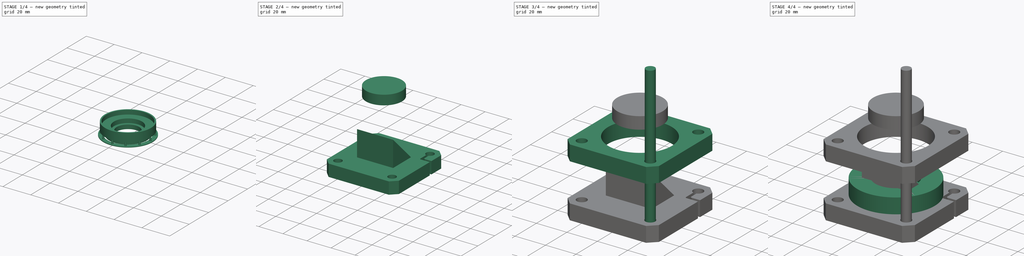
[diagram: build sequence overview — one tinted view per stage of 4, left to right]
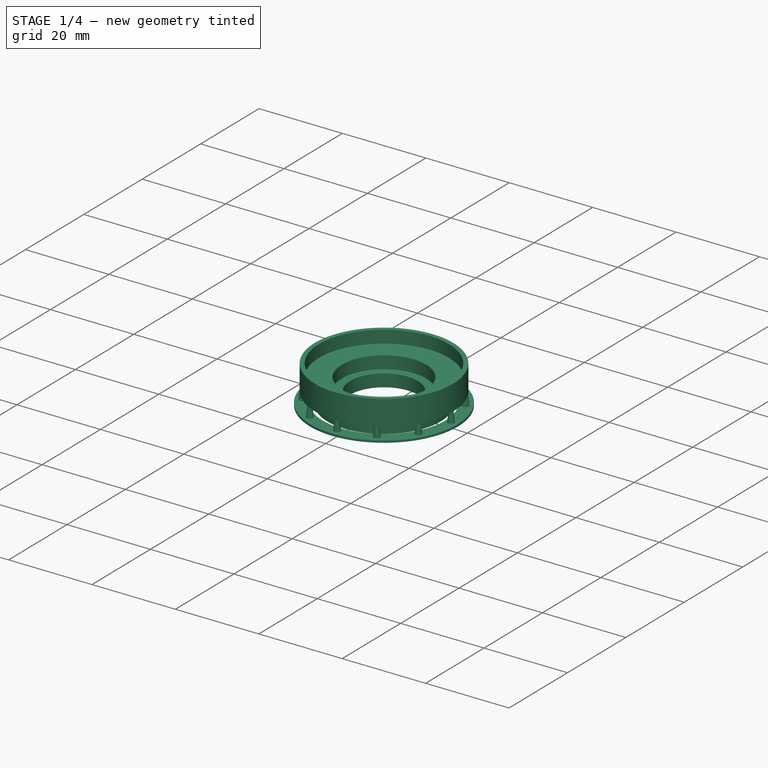
[diagram: stage 1 of 4 — iso view after this stage's code; geometry added in this stage tinted green]
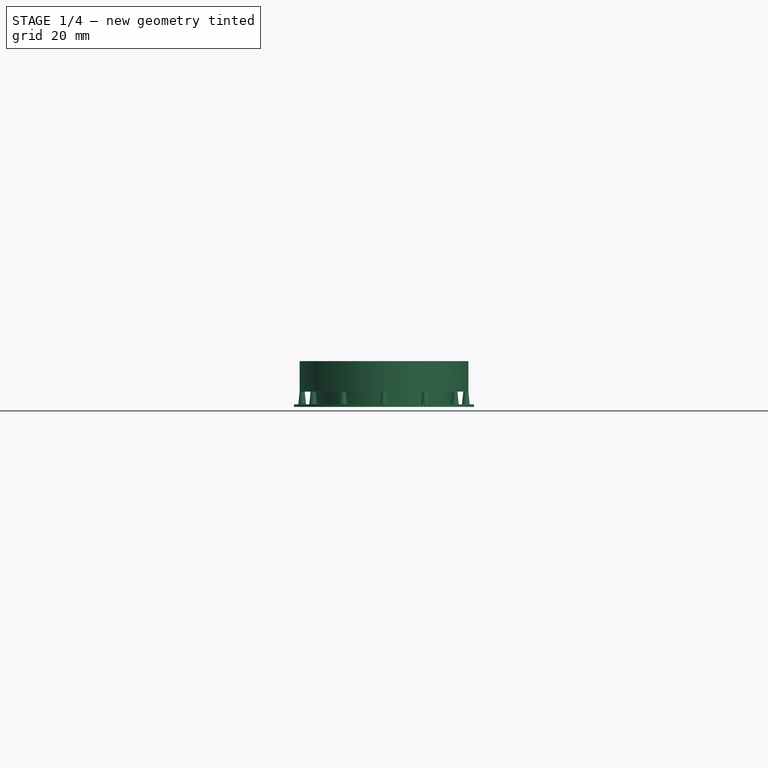
[diagram: stage 1 of 4 — front view after this stage's code; geometry added in this stage tinted green]
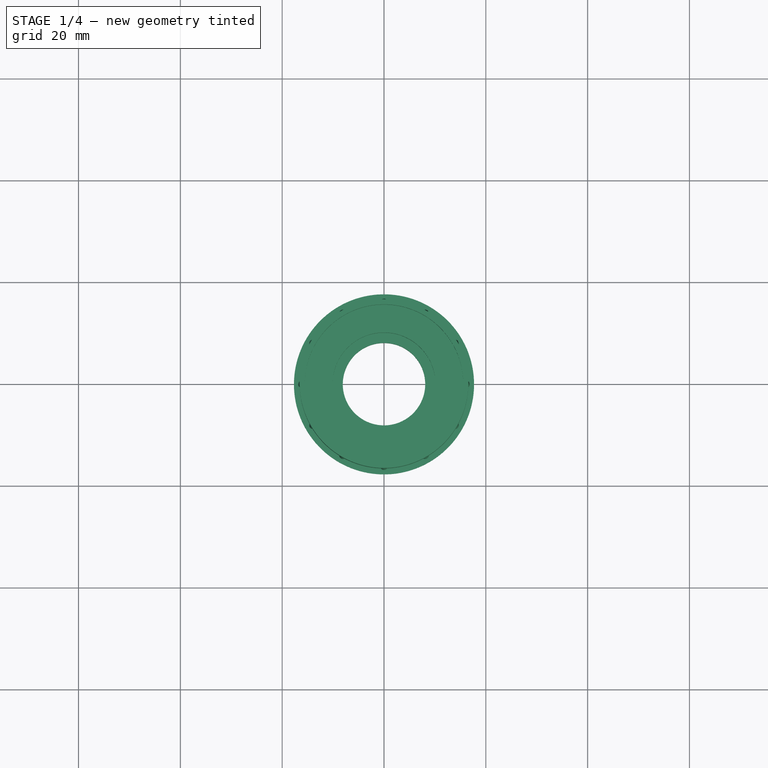
[diagram: stage 1 of 4 — top view after this stage's code; geometry added in this stage tinted green]
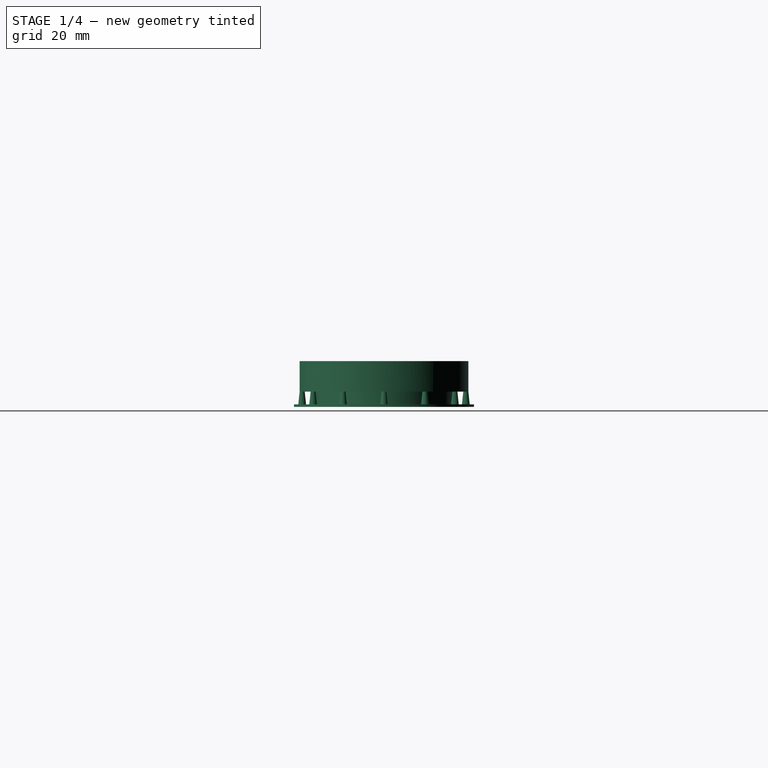
[diagram: stage 1 of 4 — right view after this stage's code; geometry added in this stage tinted green]
FCSTD DOCUMENT  (FreeCAD 0.20R29410 (Git))
Label: AudioExciter
License: All rights reserved
LicenseURL: http://en.wikipedia.org/wiki/All_rights_reserved
objects: Sketcher::SketchObject×10, PartDesign::Body×10, PartDesign::Pad×6, PartDesign::FeatureBase×4, PartDesign::Revolution×3, Part::Part2DObjectPython×3, Spreadsheet::Sheet×1, PartDesign::Plane×1
note: 46 computed .brp shape members not serialized (recipe doc carries the construction recipe); baked Part::Feature solids carry a one-line shape summary decoded from their .brp

FEATURE [PartDesign::Body] Body008  label="WaterdishBody"
  Group = -> [Sketch006,Revolution001]
  Origin = -> Origin008
  Tip = -> Revolution001
FEATURE [Sketcher::SketchObject] Sketch007
  FullyConstrained = true
  MapMode = 5
  Placement = pos=(0,0,0) rot=(0.57735,0.57735,0.57735;2.0944rad)
  Support = -> [YZ_Plane009]
  expr: Constraints[16] = 10mm + 0.1mm
  expr: Constraints[17] = 13.67mm - 0.1mm
  sketch-geometry (11):
    g0: LineSegment StartX=13.57 StartY=0 StartZ=0 EndX=13.57 EndY=3 EndZ=0
    g1: LineSegment StartX=13.57 StartY=3 StartZ=0 EndX=16.57 EndY=3 EndZ=0
    g2: LineSegment StartX=16.57 StartY=3 StartZ=0 EndX=16.57 EndY=6 EndZ=0
    g3: LineSegment StartX=15.57 StartY=6 StartZ=0 EndX=10.1 EndY=6 EndZ=0
    g4: LineSegment StartX=8.1 StartY=3 StartZ=0 EndX=8.1 EndY=0 EndZ=0
    g5: LineSegment StartX=8.1 StartY=0 StartZ=0 EndX=13.57 EndY=0 EndZ=0
    g6: LineSegment StartX=10.1 StartY=6 StartZ=0 EndX=10.1 EndY=3 EndZ=0
    g7: LineSegment StartX=10.1 StartY=3 StartZ=0 EndX=8.1 EndY=3 EndZ=0
    g8: LineSegment StartX=16.57 StartY=6 StartZ=0 EndX=16.57 EndY=9 EndZ=0
    g9: LineSegment StartX=16.57 StartY=9 StartZ=0 EndX=15.57 EndY=9 EndZ=0
    g10: LineSegment StartX=15.57 StartY=9 StartZ=0 EndX=15.57 EndY=6 EndZ=0
  constraints (33):
    c: PointOnObject(g0,g-1)
    c: Vertical(g0)
    c: Coincident(g0,g1)
    c: Horizontal(g1)
    c: Coincident(g1,g2)
    c: Vertical(g2)
    c: Horizontal(g3)
    c: PointOnObject(g4,g-1)
    c: Vertical(g4)
    c: Coincident(g4,g5)
    c: Coincident(g5,g0)
    c: Vertical(g6)
    c: Coincident(g6,g7)
    c: Horizontal(g7)
    c: Coincident(g3,g6)
    c: Coincident(g4,g7)
    c: DistanceX(g-1,g3) = 10.1
    c: DistanceX(g-1,g0) = 13.57
    c: DistanceX(g7,g7) = 2
    c: DistanceY(g4,g4) = 3
    c: DistanceY(g2,g2) = 3
    c: DistanceY(g6,g6) = 3
    c: DistanceX(g1,g1) = 3
    c: Coincident(g2,g8)
    c: Vertical(g8)
    c: Coincident(g8,g9)
    c: Horizontal(g9)
    c: Coincident(g9,g10)
    c: Vertical(g10)
    c: DistanceY(g10,g10) = 3
    c: DistanceX(g9,g9) = 1
    c: Coincident(g3,g10)
    c: Equal(g0,g4)
FEATURE [PartDesign::Revolution] Revolution002
  Angle = 360
  Axis = (-2e-16,3e-16,1)
  Base = (0,0,0)
  Placement = pos=(0,0,0) rot=(0.57735,0.57735,0.57735;2.0944rad)
  Profile = -> Sketch007
  ReferenceAxis = -> Sketch007 [V_Axis]
  Refine = true
  Reversed = true
FEATURE [Sketcher::SketchObject] Sketch008
  AttachmentOffset = pos=(0,0,3) rot=(0,0,1;0rad)
  FullyConstrained = true
  MapMode = 5
  Placement = pos=(0,0,3) rot=(0,0,1;0rad)
  Support = -> [XY_Plane009]
  sketch-geometry (25):
    g0: LineSegment StartX=13.9179 StartY=-8.0355 StartZ=0 EndX=16.071 EndY=0 EndZ=0
    g1: LineSegment StartX=16.071 StartY=4e-16 StartZ=0 EndX=13.9179 EndY=8.0355 EndZ=0
    g2: LineSegment StartX=13.9179 StartY=8.0355 StartZ=0 EndX=8.0355 EndY=13.9179 EndZ=0
    g3: LineSegment StartX=8.0355 StartY=13.9179 StartZ=0 EndX=0 EndY=16.071 EndZ=0
    g4: LineSegment StartX=0 StartY=16.071 StartZ=0 EndX=-8.0355 EndY=13.9179 EndZ=0
    g5: LineSegment StartX=-8.0355 StartY=13.9179 StartZ=0 EndX=-13.9179 EndY=8.0355 EndZ=0
    g6: LineSegment StartX=-13.9179 StartY=8.0355 StartZ=0 EndX=-16.071 EndY=0 EndZ=0
    g7: LineSegment StartX=-16.071 StartY=0 StartZ=0 EndX=-13.9179 EndY=-8.0355 EndZ=0
    g8: LineSegment StartX=-13.9179 StartY=-8.0355 StartZ=0 EndX=-8.0355 EndY=-13.9179 EndZ=0
    g9: LineSegment StartX=-8.0355 StartY=-13.9179 StartZ=0 EndX=0 EndY=-16.071 EndZ=0
    g10: LineSegment StartX=0 StartY=-16.071 StartZ=0 EndX=8.0355 EndY=-13.9179 EndZ=0
    g11: LineSegment StartX=8.0355 StartY=-13.9179 StartZ=0 EndX=13.9179 EndY=-8.0355 EndZ=0
    g12: Circle CenterX=0 CenterY=0 CenterZ=0 NormalX=0 NormalY=0 NormalZ=1 AngleXU=0 Radius=16.071
    g13: Circle CenterX=13.9179 CenterY=8.0355 CenterZ=0 NormalX=0 NormalY=0 NormalZ=1 AngleXU=0 Radius=0.5
    g14: Circle CenterX=16.071 CenterY=4e-16 CenterZ=0 NormalX=0 NormalY=0 NormalZ=1 AngleXU=0 Radius=0.5
    g15: Circle CenterX=13.9179 CenterY=-8.0355 CenterZ=0 NormalX=0 NormalY=0 NormalZ=1 AngleXU=0 Radius=0.5
    g16: Circle CenterX=8.0355 CenterY=-13.9179 CenterZ=0 NormalX=0 NormalY=0 NormalZ=1 AngleXU=0 Radius=0.5
    g17: Circle CenterX=0 CenterY=-16.071 CenterZ=0 NormalX=0 NormalY=0 NormalZ=1 AngleXU=0 Radius=0.5
    g18: Circle CenterX=-8.0355 CenterY=-13.9179 CenterZ=0 NormalX=0 NormalY=0 NormalZ=1 AngleXU=0 Radius=0.5
    g19: Circle CenterX=-13.9179 CenterY=-8.0355 CenterZ=0 NormalX=0 NormalY=0 NormalZ=1 AngleXU=0 Radius=0.5
    g20: Circle CenterX=-16.071 CenterY=0 CenterZ=0 NormalX=0 NormalY=0 NormalZ=1 AngleXU=0 Radius=0.5
    g21: Circle CenterX=-13.9179 CenterY=8.0355 CenterZ=0 NormalX=0 NormalY=0 NormalZ=1 AngleXU=0 Radius=0.5
    g22: Circle CenterX=-8.0355 CenterY=13.9179 CenterZ=0 NormalX=0 NormalY=0 NormalZ=1 AngleXU=0 Radius=0.5
    g23: Circle CenterX=0 CenterY=16.071 CenterZ=0 NormalX=0 NormalY=0 NormalZ=1 AngleXU=0 Radius=0.5
    g24: Circle CenterX=8.0355 CenterY=13.9179 CenterZ=0 NormalX=0 NormalY=0 NormalZ=1 AngleXU=0 Radius=0.5
  constraints (52):
    c: Coincident(g0,g1)
    c: Coincident(g1,g2)
    c: Coincident(g2,g3)
    c: Coincident(g3,g4)
    c: Coincident(g4,g5)
    c: Coincident(g5,g6)
    c: Coincident(g6,g7)
    c: Coincident(g7,g8)
    c: Coincident(g8,g9)
    c: Coincident(g9,g10)
    c: Coincident(g10,g11)
    c: Coincident(g11,g0)
    c: Equal(g0, g1-g11) x11
    c: PointOnObject(g0,g12)
    c: PointOnObject(g1,g12)
    c: PointOnObject(g2,g12)
    c: PointOnObject(g3,g12)
    c: PointOnObject(g4,g12)
    c: PointOnObject(g5,g12)
    c: PointOnObject(g6,g12)
    c: PointOnObject(g7,g12)
    c: PointOnObject(g8,g12)
    c: PointOnObject(g9,g12)
    c: PointOnObject(g10,g12)
    c: PointOnObject(g11,g12)
    c: Coincident(g12,g-1)
    c: Coincident(g13,g1)
    c: Coincident(g14,g0)
    c: Coincident(g15,g0)
    c: Coincident(g16,g10)
    c: Coincident(g17,g9)
    c: Coincident(g18,g8)
    c: Coincident(g19,g7)
    c: Coincident(g20,g6)
    c: Coincident(g21,g5)
    c: Coincident(g22,g4)
    c: Coincident(g23,g3)
    c: Coincident(g24,g2)
    c: Equal(g24,g13)
    c: Equal(g13,g14)
    c: Equal(g14,g15)
    c: Equal(g15,g16)
    c: Equal(g16,g17)
    c: Equal(g17,g18)
    c: Equal(g18,g19)
    c: Equal(g19,g20)
    c: Equal(g20,g21)
    c: Equal(g21,g22)
    c: Equal(g22,g23)
    c: Diameter(g15) = 1
    c: Diameter(g12) = 32.142
    c: PointOnObject(g23,g-2)
FEATURE [PartDesign::Pad] Pad004
  BaseFeature = -> Revolution002
  Direction = (0,0,1)
  Length = 3
  Length2 = 10
  Placement = pos=(0,0,0) rot=(0.57735,0.57735,0.57735;2.0944rad)
  Profile = -> Sketch008
  ReferenceAxis = -> Sketch008 [N_Axis]
  Refine = true
  Reversed = true
  TaperAngle = 6
  Type = 0
FEATURE [Sketcher::SketchObject] Sketch009
  FullyConstrained = false
  MapMode = 5
  Support = -> [XY_Plane009]
  sketch-geometry (2):
    g0: Circle CenterX=0 CenterY=0 CenterZ=0 NormalX=0 NormalY=0 NormalZ=1 AngleXU=0 Radius=17.6896
    g1: Circle CenterX=0 CenterY=0 CenterZ=0 NormalX=0 NormalY=0 NormalZ=1 AngleXU=0 Radius=14.6725
  constraints (2):
    c: Coincident(g0,g-1)
    c: Coincident(g1,g0)
FEATURE [PartDesign::Pad] Pad005
  BaseFeature = -> Pad004
  Direction = (0,0,1)
  Length = 0.5
  Length2 = 10
  Placement = pos=(0,0,0) rot=(0.57735,0.57735,0.57735;2.0944rad)
  Profile = -> Sketch009
  ReferenceAxis = -> Sketch009 [N_Axis]
  Refine = true
  Type = 0
FEATURE [PartDesign::Body] Body009  label="DishFlangeBody"
  Group = -> [Sketch007,Revolution002,Sketch008,Pad004,Sketch009,Pad005]
  Origin = -> Origin009
  Placement = pos=(0,0,52.9) rot=(0,0,1;0rad)
  Tip = -> Pad005
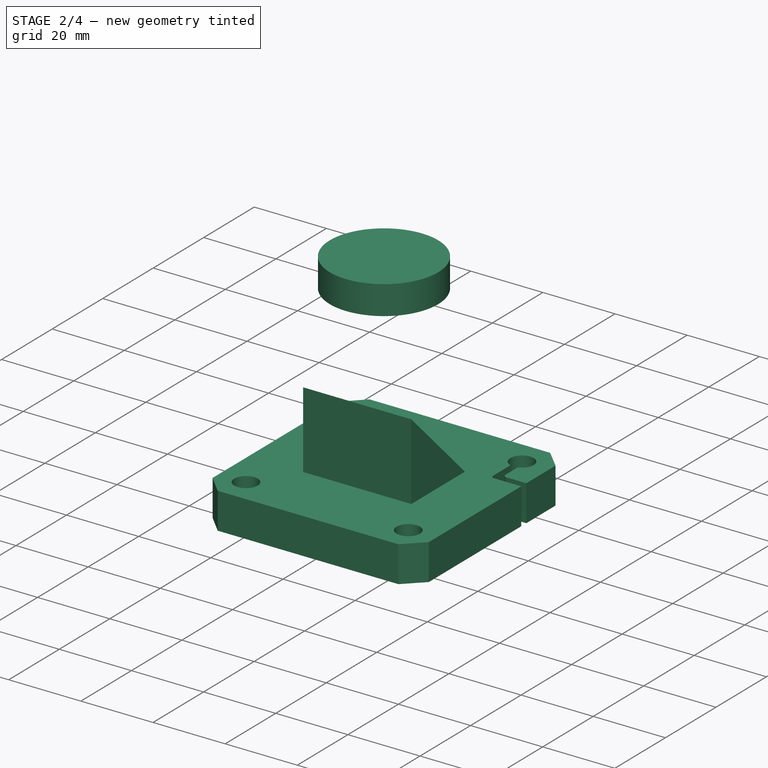
[diagram: stage 2 of 4 — iso view after this stage's code; geometry added in this stage tinted green]
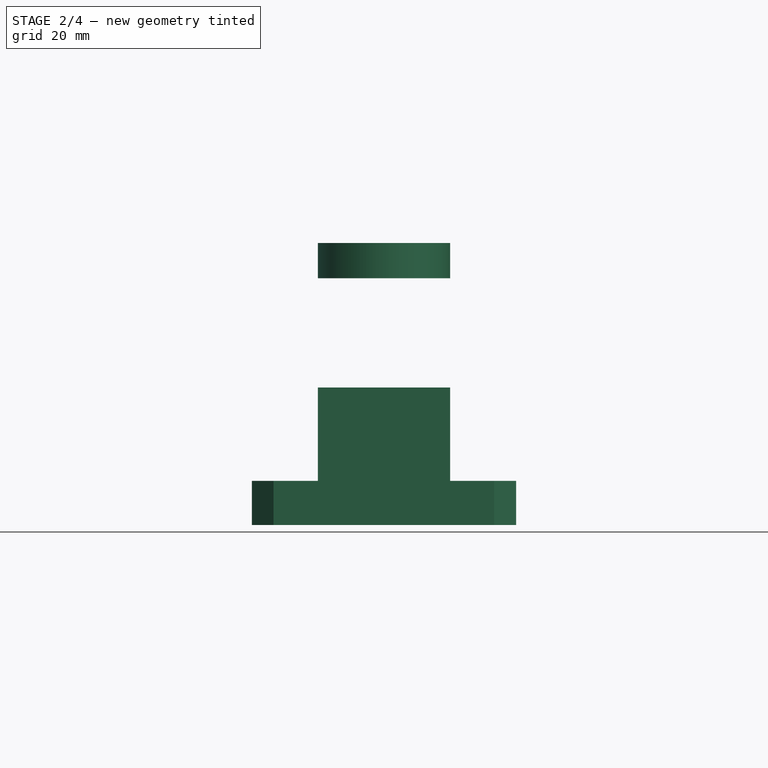
[diagram: stage 2 of 4 — front view after this stage's code; geometry added in this stage tinted green]
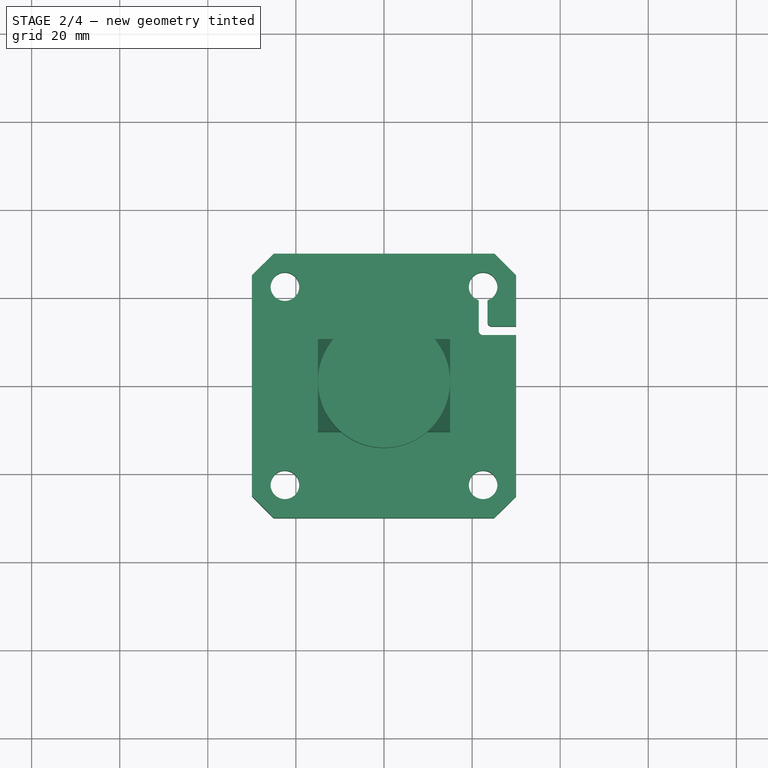
[diagram: stage 2 of 4 — top view after this stage's code; geometry added in this stage tinted green]
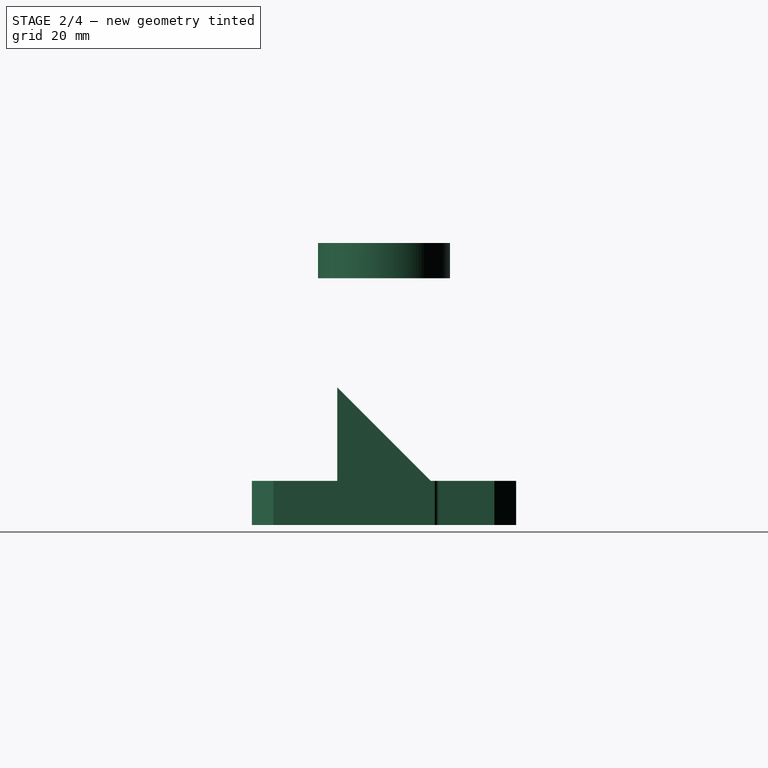
[diagram: stage 2 of 4 — right view after this stage's code; geometry added in this stage tinted green]
FEATURE [PartDesign::Body] Body004  label="Rod4Body"
  BaseFeature = -> Body001
  Group = -> [Clone002]
  Origin = -> Origin004
  Placement = pos=(0,0,0) rot=(0,0,-1;1.5708rad)
  Tip = -> Clone002
FEATURE [Part::Part2DObjectPython] Clone2D001  label="MasterSketch (2D)001"  # Draft 2D object (typed FeaturePython)
  Fuse = false
  Objects = -> [Sketch001]
  Scale = (1,1,1)
FEATURE [Sketcher::SketchObject] Sketch003
  ExternalGeometry = -> [Clone2D001]
  FullyConstrained = false
  MapMode = 5
  Support = -> [XY_Plane005]
  expr: Constraints[22] = Spreadsheet.basechamferlength
  expr: Constraints[30] = Spreadsheet.roddiameter + Spreadsheet.rodclearance
  expr: Constraints[36] = Spreadsheet.flexclampwidth / 2
  expr: Constraints[51] = Spreadsheet.flexclampwidth
  sketch-geometry (21):
    g0: LineSegment StartX=30 StartY=25.0503 StartZ=0 EndX=30 EndY=13.5 EndZ=0
    g1: LineSegment StartX=30 StartY=-25.1086 StartZ=0 EndX=24.9925 EndY=-30 EndZ=0
    g2: LineSegment StartX=24.9925 StartY=-30 StartZ=0 EndX=-25.0889 EndY=-30 EndZ=0
    g3: LineSegment StartX=-25.0889 StartY=-30 StartZ=0 EndX=-30 EndY=-25.012 EndZ=0
    g4: LineSegment StartX=-30 StartY=-25.012 StartZ=0 EndX=-30 EndY=25.0694 EndZ=0
    g5: LineSegment StartX=-30 StartY=25.0694 StartZ=0 EndX=-25.0311 EndY=30 EndZ=0
    g6: LineSegment StartX=-25.0311 StartY=30 StartZ=0 EndX=25.0503 EndY=30 EndZ=0
    g7: LineSegment StartX=25.0503 StartY=30 StartZ=0 EndX=30 EndY=25.0503 EndZ=0
    g8: ArcOfCircle CenterX=22.5 CenterY=22.5 CenterZ=0 NormalX=0 NormalY=0 NormalZ=1 AngleXU=0 Radius=3.25 StartAngle=5.02516 EndAngle=10.6828
    g9: Circle CenterX=-22.5 CenterY=22.5 CenterZ=0 NormalX=0 NormalY=0 NormalZ=1 AngleXU=0 Radius=3.25
    g10: Circle CenterX=22.5 CenterY=-22.5 CenterZ=0 NormalX=0 NormalY=0 NormalZ=1 AngleXU=0 Radius=3.25
    g11: Circle CenterX=-22.5 CenterY=-22.5 CenterZ=0 NormalX=0 NormalY=0 NormalZ=1 AngleXU=0 Radius=3.25
    g12: LineSegment StartX=23.5 StartY=14.5 StartZ=0 EndX=23.5 EndY=19.4077 EndZ=0
    g13: LineSegment StartX=-34.4279 StartY=11.5 StartZ=0 EndX=32.9864 EndY=11.5 EndZ=0
    g14: LineSegment StartX=-34.4279 StartY=-11.5 StartZ=0 EndX=32.9864 EndY=-11.5 EndZ=0
    g15: LineSegment StartX=21.5 StartY=19.4077 StartZ=0 EndX=21.5 EndY=12.5 EndZ=0
    g16: ArcOfCircle CenterX=22.5 CenterY=12.5 CenterZ=0 NormalX=0 NormalY=0 NormalZ=1 AngleXU=0 Radius=1 StartAngle=3.14159 EndAngle=4.71239
    g17: LineSegment StartX=22.5 StartY=11.5 StartZ=0 EndX=30 EndY=11.5 EndZ=0
    g18: LineSegment StartX=30 StartY=13.5 StartZ=0 EndX=24.5 EndY=13.5 EndZ=0
    g19: ArcOfCircle CenterX=24.5 CenterY=14.5 CenterZ=0 NormalX=0 NormalY=0 NormalZ=1 AngleXU=0 Radius=1 StartAngle=3.14159 EndAngle=4.71239
    g20: LineSegment StartX=30 StartY=11.5 StartZ=0 EndX=30 EndY=-25.1086 EndZ=0
  constraints (58):
    c: PointOnObject(g0,g-3)
    c: PointOnObject(g20,g-3)
    c: Coincident(g20,g1)
    c: PointOnObject(g1,g-6)
    c: Coincident(g1,g2)
    c: PointOnObject(g2,g-6)
    c: Coincident(g2,g3)
    c: PointOnObject(g3,g-5)
    c: Coincident(g3,g4)
    c: PointOnObject(g4,g-5)
    c: Coincident(g4,g5)
    c: PointOnObject(g5,g-4)
    c: Coincident(g5,g6)
    c: PointOnObject(g6,g-4)
    c: Coincident(g6,g7)
    c: Coincident(g7,g0)
    c: Equal(g5,g7)
    c: Equal(g7,g3)
    c: Equal(g3,g1)
    c: Equal(g6,g4)
    c: Equal(g4,g2)
    c: Angle(g7,g0) = 2.35619
    c: Distance(g7) = 7
    c: Coincident(g8,g-8)
    c: Coincident(g9,g-7)
    c: Coincident(g10,g-9)
    c: Coincident(g11,g-10)
    c: Equal(g8,g10)
    c: Equal(g10,g11)
    c: Equal(g11,g9)
    c: Diameter(g8) = 6.5
    c: Horizontal(g13)
    c: Horizontal(g14)
    c: Equal(g13,g14)
    c: Equal(g14,g-11)
    c: Vertical(g-11,g13)
    c: DistanceY(g13,g-11) = 1
    c: Symmetric(g13,g14,g-1)
    c: PointOnObject(g15,g-11)
    c: Vertical(g15)
    c: Tangent(g15,g16) = -1.5708
    c: PointOnObject(g16,g13)
    c: Coincident(g16,g17)
    c: PointOnObject(g17,g0)
    c: Horizontal(g17)
    c: Tangent(g18,g19) = 1.5708
    c: PointOnObject(g16,g-14)
    c: PointOnObject(g20,g13)
    c: Coincident(g12,g8)
    c: Coincident(g15,g8)
    c: Symmetric(g8,g8,g-14)
    c: DistanceX(g8,g8) = 2
    c: Vertical(g12)
    c: Symmetric(g17,g0,g-11)
    c: Coincident(g18,g0)
    c: Horizontal(g18)
    c: Tangent(g19,g12) = 1.5708
    c: Equal(g16,g19)
FEATURE [PartDesign::Pad] Pad001  label="BasePad"
  Direction = (0,0,1)
  Length = 10
  Length2 = 10
  Profile = -> Sketch003
  ReferenceAxis = -> Sketch003 [N_Axis]
  Refine = true
  Type = 0
FEATURE [Sketcher::SketchObject] Sketch004
  ExternalGeometry = -> [Clone2D001]
  FullyConstrained = true
  MapMode = 5
  Placement = pos=(0,0,0) rot=(0.57735,0.57735,0.57735;2.0944rad)
  Support = -> [YZ_Plane005]
  expr: Constraints[0] = Spreadsheet.basedepth
  expr: Constraints[6] = Spreadsheet.inputmirrormaxdim
  sketch-geometry (4):
    g0: LineSegment StartX=-30 StartY=10 StartZ=0 EndX=30 EndY=10 EndZ=0
    g1: LineSegment StartX=-10.6066 StartY=31.2132 StartZ=0 EndX=-10.6066 EndY=10 EndZ=0
    g2: LineSegment StartX=-10.6066 StartY=10 StartZ=0 EndX=10.6066 EndY=10 EndZ=0
    g3: LineSegment StartX=10.6066 StartY=10 StartZ=0 EndX=-10.6066 EndY=31.2132 EndZ=0
  constraints (11):
    c: DistanceY(g-1,g0) = 10
    c: PointOnObject(g1,g0)
    c: Vertical(g1)
    c: Coincident(g1,g2)
    c: Coincident(g2,g3)
    c: Coincident(g3,g1)
    c: Distance(g3) = 30
    c: Angle(g3,g2) = 0.785398
    c: Symmetric(g2,g1,g-2)
    c: Symmetric(g0,g0,g-2)
    c: Vertical(g0,g-3)
FEATURE [PartDesign::Pad] Pad002
  BaseFeature = -> Pad001
  Direction = (1,-2e-16,3e-16)
  Length = 30
  Length2 = 10
  Midplane = true
  Profile = -> Sketch004
  ReferenceAxis = -> Sketch004 [N_Axis]
  Refine = true
  Type = 0
  expr: Length = Spreadsheet.inputmirrormaxdim
FEATURE [PartDesign::Body] Body007  label="MirrorMount45Body2"
  BaseFeature = -> Body005
  Group = -> [Clone003]
  Origin = -> Origin007
  Placement = pos=(0,0,97) rot=(1,0,0;3.14159rad)
  Tip = -> Clone003
FEATURE [Sketcher::SketchObject] Sketch006
  FullyConstrained = true
  MapMode = 5
  Placement = pos=(0,0,0) rot=(1,0,0;1.5708rad)
  Support = -> [XZ_Plane008]
  expr: Constraints[18] = Spreadsheet.waterdishdiameter / 2
  expr: Constraints[19] = Spreadsheet.waterdishheight
  expr: Constraints[23] = Spreadsheet.exciterbasevoffset + 21mm
  sketch-geometry (8):
    g0: LineSegment StartX=0 StartY=56 StartZ=0 EndX=15 EndY=56 EndZ=0
    g1: LineSegment StartX=15 StartY=56 StartZ=0 EndX=15 EndY=64 EndZ=0
    g2: LineSegment StartX=15 StartY=64 StartZ=0 EndX=0 EndY=64 EndZ=0
    g3: LineSegment StartX=0 StartY=64 StartZ=0 EndX=0 EndY=63 EndZ=0
    g4: LineSegment StartX=0 StartY=63 StartZ=0 EndX=14 EndY=63 EndZ=0
    g5: LineSegment StartX=14 StartY=63 StartZ=0 EndX=14 EndY=57 EndZ=0
    g6: LineSegment StartX=14 StartY=57 StartZ=0 EndX=0 EndY=57 EndZ=0
    g7: LineSegment StartX=0 StartY=57 StartZ=0 EndX=0 EndY=56 EndZ=0
  constraints (24):
    c: PointOnObject(g0,g-2)
    c: Horizontal(g0)
    c: Coincident(g0,g1)
    c: Vertical(g1)
    c: Coincident(g1,g2)
    c: PointOnObject(g2,g-2)
    c: Horizontal(g2)
    c: Coincident(g2,g3)
    c: Vertical(g3)
    c: Coincident(g3,g4)
    c: Horizontal(g4)
    c: Coincident(g4,g5)
    c: Vertical(g5)
    c: Coincident(g5,g6)
    c: PointOnObject(g6,g-2)
    c: Horizontal(g6)
    c: Coincident(g6,g7)
    c: Coincident(g7,g0)
    c: DistanceX(g0,g0) = 15
    c: DistanceY(g1,g1) = 8
    c: Equal(g7,g3)
    c: DistanceY(g3,g3) = 1
    c: DistanceX(g4,g1) = 1
    c: DistanceY(g-1,g0) = 56
FEATURE [PartDesign::Revolution] Revolution001
  Angle = 360
  Axis = (0,-2e-16,1)
  Base = (0,0,0)
  Placement = pos=(0,0,0) rot=(1,0,0;1.5708rad)
  Profile = -> Sketch006
  ReferenceAxis = -> Sketch006 [V_Axis]
  Refine = true
  Reversed = true
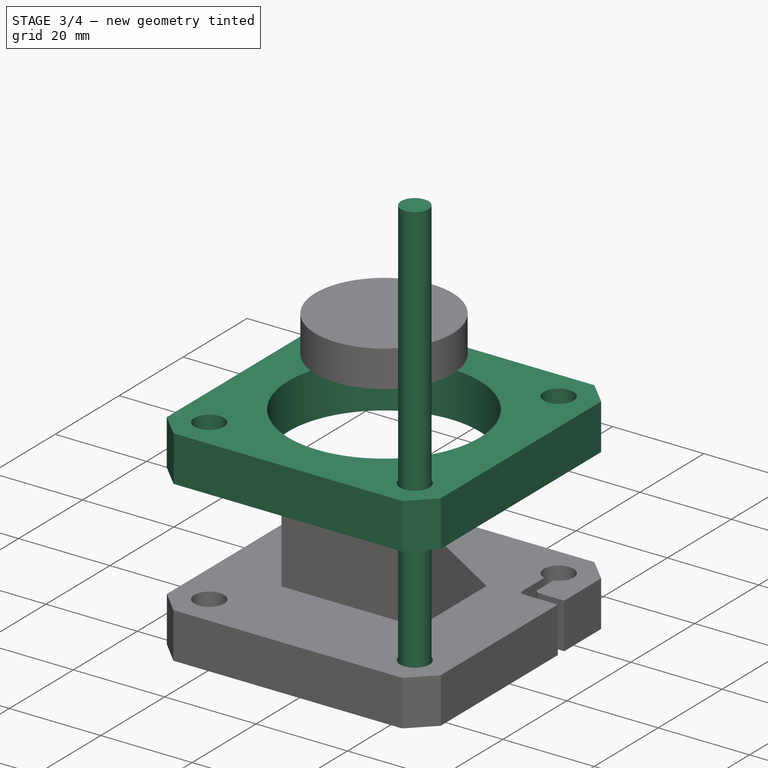
[diagram: stage 3 of 4 — iso view after this stage's code; geometry added in this stage tinted green]
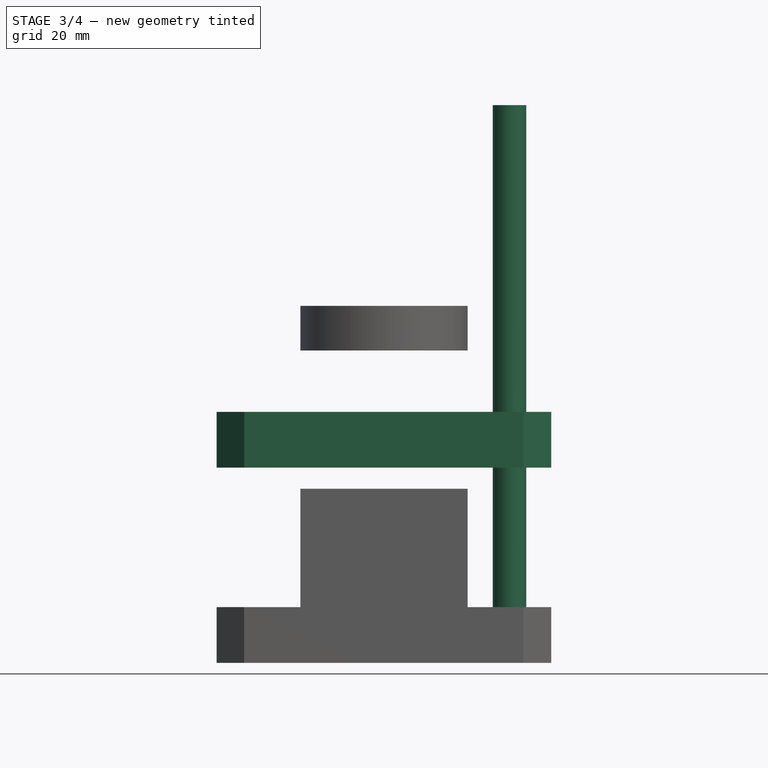
[diagram: stage 3 of 4 — front view after this stage's code; geometry added in this stage tinted green]
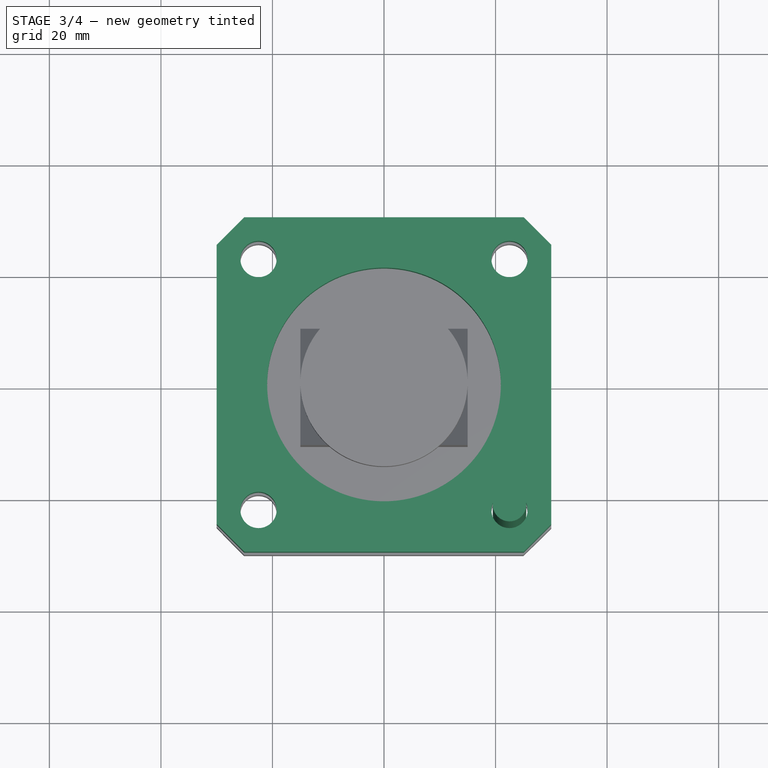
[diagram: stage 3 of 4 — top view after this stage's code; geometry added in this stage tinted green]
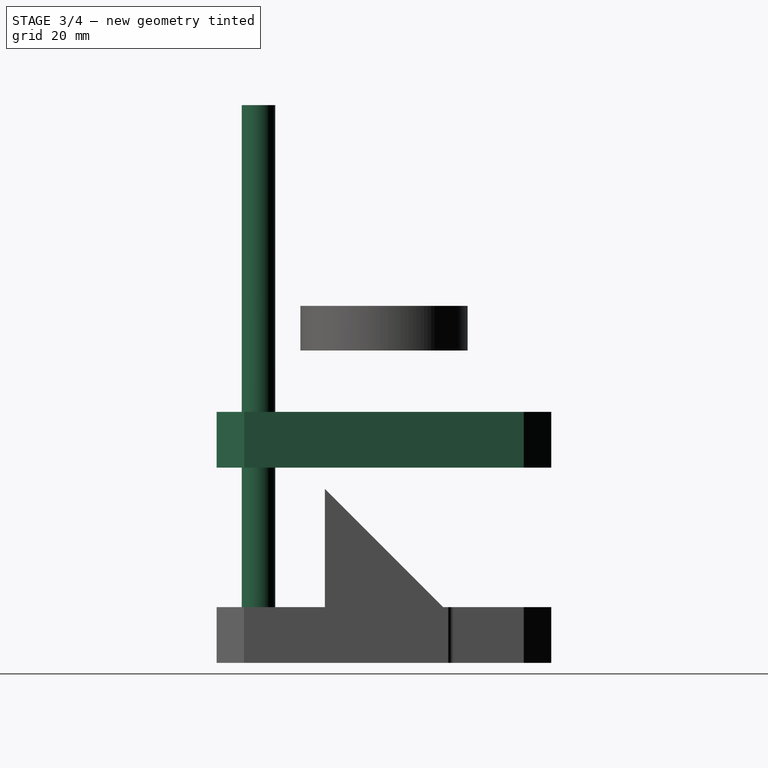
[diagram: stage 3 of 4 — right view after this stage's code; geometry added in this stage tinted green]
FEATURE [PartDesign::Body] Body  label="AudioExciterBody"
  Group = -> [Sketch,Revolution]
  Origin = -> Origin
  Placement = pos=(0,0,35) rot=(0,0,1;0rad)
  Tip = -> Revolution
FEATURE [Sketcher::SketchObject] Sketch001  label="MasterSketch"
  FullyConstrained = false
  expr: Constraints[11] = Spreadsheet.outerdim
  expr: Constraints[23] = Spreadsheet.cagedim
  expr: Constraints[31] = Spreadsheet.roddiameter
  expr: Constraints[34] = Spreadsheet.flexclamplength
  sketch-geometry (16):
    g0: LineSegment StartX=-30 StartY=30 StartZ=0 EndX=-30 EndY=-30 EndZ=0
    g1: LineSegment StartX=-30 StartY=-30 StartZ=0 EndX=30 EndY=-30 EndZ=0
    g2: LineSegment StartX=30 StartY=-30 StartZ=0 EndX=30 EndY=30 EndZ=0
    g3: LineSegment StartX=30 StartY=30 StartZ=0 EndX=-30 EndY=30 EndZ=0
    g4: GeomPoint X=0 Y=0 Z=0
    g5: LineSegment StartX=-22.5 StartY=22.5 StartZ=0 EndX=-22.5 EndY=-22.5 EndZ=0
    g6: LineSegment StartX=-22.5 StartY=-22.5 StartZ=0 EndX=22.5 EndY=-22.5 EndZ=0
    g7: LineSegment StartX=22.5 StartY=-22.5 StartZ=0 EndX=22.5 EndY=22.5 EndZ=0
    g8: LineSegment StartX=22.5 StartY=22.5 StartZ=0 EndX=-22.5 EndY=22.5 EndZ=0
    g9: GeomPoint X=0 Y=0 Z=0
    g10: Circle CenterX=22.5 CenterY=-22.5 CenterZ=0 NormalX=0 NormalY=0 NormalZ=1 AngleXU=0 Radius=3
    g11: Circle CenterX=-22.5 CenterY=-22.5 CenterZ=0 NormalX=0 NormalY=0 NormalZ=1 AngleXU=0 Radius=3
    g12: Circle CenterX=-22.5 CenterY=22.5 CenterZ=0 NormalX=0 NormalY=0 NormalZ=1 AngleXU=0 Radius=3
    g13: Circle CenterX=22.5 CenterY=22.5 CenterZ=0 NormalX=0 NormalY=0 NormalZ=1 AngleXU=0 Radius=3
    g14: LineSegment StartX=-34.4279 StartY=12.5 StartZ=0 EndX=32.9864 EndY=12.5 EndZ=0
    g15: LineSegment StartX=-34.4279 StartY=-12.5 StartZ=0 EndX=32.9864 EndY=-12.5 EndZ=0
  constraints (37):
    c: Coincident(g0,g1)
    c: Coincident(g1,g2)
    c: Coincident(g2,g3)
    c: Coincident(g3,g0)
    c: Horizontal(g1)
    c: Horizontal(g3)
    c: Vertical(g0)
    c: Vertical(g2)
    c: Symmetric(g1,g0,g4)
    c: Coincident(g4,g-1)
    c: Equal(g2,g1)
    c: DistanceX(g1,g1) = 60
    c: Coincident(g5,g6)
    c: Coincident(g6,g7)
    c: Coincident(g7,g8)
    c: Coincident(g8,g5)
    c: Horizontal(g6)
    c: Horizontal(g8)
    c: Vertical(g5)
    c: Vertical(g7)
    c: Symmetric(g6,g5,g9)
    c: Coincident(g9,g4)
    c: Equal(g7,g6)
    c: DistanceX(g6,g6) = 45
    c: Coincident(g10,g6)
    c: Coincident(g11,g5)
    c: Coincident(g12,g5)
    c: Coincident(g13,g7)
    c: Equal(g12,g13)
    c: Equal(g13,g11)
    c: Equal(g11,g10)
    c: Diameter(g10) = 6
    c: Horizontal(g14)
    c: Horizontal(g15)
    c: DistanceY(g14,g5) = 10
    c: Symmetric(g14,g15,g-1)
    c: Equal(g14,g15)
FEATURE [Spreadsheet::Sheet] Spreadsheet
  cells = A2=cagedim; B2(cagedim)==45mm; A3=outerdim; B3(outerdim)==60mm; A4=roddiameter; B4(roddiameter)==6mm; A5=rodlength; B5(rodlength)==100mm; A6=rodclearance; B6(rodclearance)==0.5mm; A7=inputmirrormaxdim; B7(inputmirrormaxdim)==30mm; A8=basedepth; B8(basedepth)==10mm; A9=basechamferlength; B9(basechamferlength)==7mm; A10=excitermagnetdiameter; B10(excitermagnetdiameter)==41.9mm; A11=exciterbasevoffset; B11(exciterbasevoffset)==35mm; A12=waterdishdiameter; B12(waterdishdiameter)==30mm; A13=waterdishheight; B13(waterdishheight)==8mm; A14=flexclamplength; B14(flexclamplength)==10mm; A15=flexclampwidth; B15(flexclampwidth)==2mm
FEATURE [Part::Part2DObjectPython] Clone2D  label="MasterSketch (2D)"  # Draft 2D object (typed FeaturePython)
  Fuse = false
  Objects = -> [Sketch001]
  Scale = (1,1,1)
FEATURE [Sketcher::SketchObject] Sketch002
  ExternalGeometry = -> [Clone2D]
  FullyConstrained = true
  MapMode = 5
  Support = -> [XY_Plane001]
  sketch-geometry (1):
    g0: Circle CenterX=22.5 CenterY=-22.5 CenterZ=0 NormalX=0 NormalY=0 NormalZ=1 AngleXU=0 Radius=3
  constraints (2):
    c: Coincident(g0,g-3)
    c: Equal(g-3,g0)
FEATURE [PartDesign::Pad] Pad
  Direction = (0,0,1)
  Length = 100
  Length2 = 10
  Profile = -> Sketch002
  ReferenceAxis = -> Sketch002 [N_Axis]
  Refine = true
  Type = 0
  expr: Length = Spreadsheet.rodlength
FEATURE [PartDesign::Body] Body003  label="Rod3Body"
  BaseFeature = -> Body001
  Group = -> [Clone001]
  Origin = -> Origin003
  Placement = pos=(0,0,0) rot=(0,0,1;3.14159rad)
  Tip = -> Clone001
FEATURE [PartDesign::FeatureBase] Clone002
  BaseFeature = -> Body001
FEATURE [PartDesign::Body] Body005  label="MirrorMount45Body1"
  Group = -> [Sketch003,Clone2D001,Pad001,Sketch004,Pad002]
  Origin = -> Origin005
  Tip = -> Pad002
FEATURE [Part::Part2DObjectPython] Clone2D002  label="MasterSketch (2D)002"  # Draft 2D object (typed FeaturePython)
  Fuse = false
  Objects = -> [Sketch001]
  Scale = (1,1,1)
FEATURE [PartDesign::Plane] DatumPlane
  AttachmentOffset = pos=(0,0,35) rot=(0,0,1;0rad)
  Length = 72
  MapMode = 5
  Placement = pos=(0,0,35) rot=(0,0,1;0rad)
  ResizeMode = 0
  Support = -> [XY_Plane006]
  Width = 72
  expr: .AttachmentOffset.Base.z = Spreadsheet.exciterbasevoffset
FEATURE [Sketcher::SketchObject] Sketch005
  ExternalGeometry = -> [Clone2D002]
  FullyConstrained = true
  MapMode = 5
  Placement = pos=(0,0,35) rot=(0,0,1;0rad)
  Support = -> [DatumPlane]
  expr: Constraints[23] = Spreadsheet.basechamferlength
  expr: Constraints[31] = Spreadsheet.roddiameter + Spreadsheet.rodclearance
  expr: Constraints[33] = Spreadsheet.excitermagnetdiameter
  sketch-geometry (13):
    g0: LineSegment StartX=30 StartY=25.0503 StartZ=0 EndX=30 EndY=-25.0503 EndZ=0
    g1: LineSegment StartX=30 StartY=-25.0503 StartZ=0 EndX=25.0503 EndY=-30 EndZ=0
    g2: LineSegment StartX=25.0503 StartY=-30 StartZ=0 EndX=-25.0503 EndY=-30 EndZ=0
    g3: LineSegment StartX=-25.0503 StartY=-30 StartZ=0 EndX=-30 EndY=-25.0503 EndZ=0
    g4: LineSegment StartX=-30 StartY=-25.0503 StartZ=0 EndX=-30 EndY=25.0503 EndZ=0
    g5: LineSegment StartX=-30 StartY=25.0503 StartZ=0 EndX=-25.0503 EndY=30 EndZ=0
    g6: LineSegment StartX=-25.0503 StartY=30 StartZ=0 EndX=25.0503 EndY=30 EndZ=0
    g7: LineSegment StartX=25.0503 StartY=30 StartZ=0 EndX=30 EndY=25.0503 EndZ=0
    g8: Circle CenterX=22.5 CenterY=22.5 CenterZ=0 NormalX=0 NormalY=0 NormalZ=1 AngleXU=0 Radius=3.25
    g9: Circle CenterX=22.5 CenterY=-22.5 CenterZ=0 NormalX=0 NormalY=0 NormalZ=1 AngleXU=0 Radius=3.25
    g10: Circle CenterX=-22.5 CenterY=-22.5 CenterZ=0 NormalX=0 NormalY=0 NormalZ=1 AngleXU=0 Radius=3.25
    g11: Circle CenterX=-22.5 CenterY=22.5 CenterZ=0 NormalX=0 NormalY=0 NormalZ=1 AngleXU=0 Radius=3.25
    g12: Circle CenterX=0 CenterY=0 CenterZ=0 NormalX=0 NormalY=0 NormalZ=1 AngleXU=0 Radius=20.95
  constraints (34):
    c: PointOnObject(g0,g-4)
    c: PointOnObject(g0,g-4)
    c: Coincident(g0,g1)
    c: PointOnObject(g1,g-5)
    c: Coincident(g1,g2)
    c: PointOnObject(g2,g-5)
    c: Coincident(g2,g3)
    c: PointOnObject(g3,g-6)
    c: Coincident(g3,g4)
    c: PointOnObject(g4,g-6)
    c: Coincident(g4,g5)
    c: PointOnObject(g5,g-3)
    c: Coincident(g5,g6)
    c: PointOnObject(g6,g-3)
    c: Coincident(g6,g7)
    c: Coincident(g7,g0)
    c: Equal(g0,g4)
    c: Equal(g4,g6)
    c: Equal(g6,g2)
    c: Equal(g5,g7)
    c: Equal(g7,g1)
    c: Equal(g1,g3)
    c: Angle(g7,g0) = 2.35619
    c: Distance(g7) = 7
    c: Coincident(g8,g-7)
    c: Coincident(g9,g-8)
    c: Coincident(g10,g-9)
    c: Coincident(g11,g-10)
    c: Equal(g11,g8)
    c: Equal(g8,g10)
    c: Equal(g10,g9)
    c: Diameter(g8) = 6.5
    c: Coincident(g12,g-1)
    c: Diameter(g12) = 41.9
FEATURE [PartDesign::Pad] Pad003
  Direction = (0,0,1)
  Length = 10
  Length2 = 10
  Placement = pos=(0,0,35) rot=(0,0,1;0rad)
  Profile = -> Sketch005
  ReferenceAxis = -> Sketch005 [N_Axis]
  Refine = true
  Type = 0
  expr: Length = Spreadsheet.basedepth
FEATURE [PartDesign::Body] Body006  label="ExciterMountBody"
  Group = -> [Clone2D002,DatumPlane,Sketch005,Pad003]
  Origin = -> Origin006
  Tip = -> Pad003
FEATURE [PartDesign::FeatureBase] Clone003
  BaseFeature = -> Body005
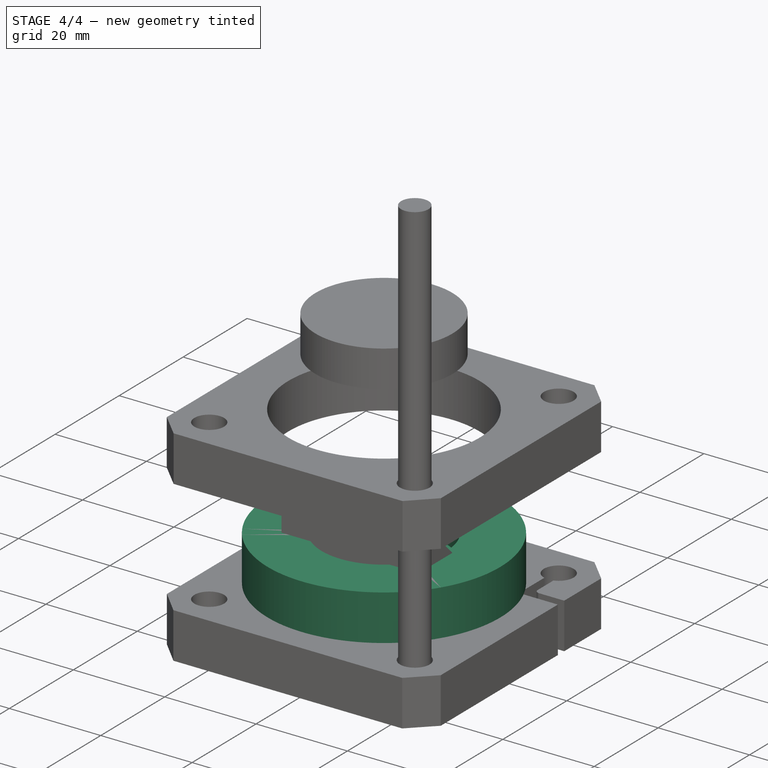
[diagram: stage 4 of 4 — iso view after this stage's code; geometry added in this stage tinted green]
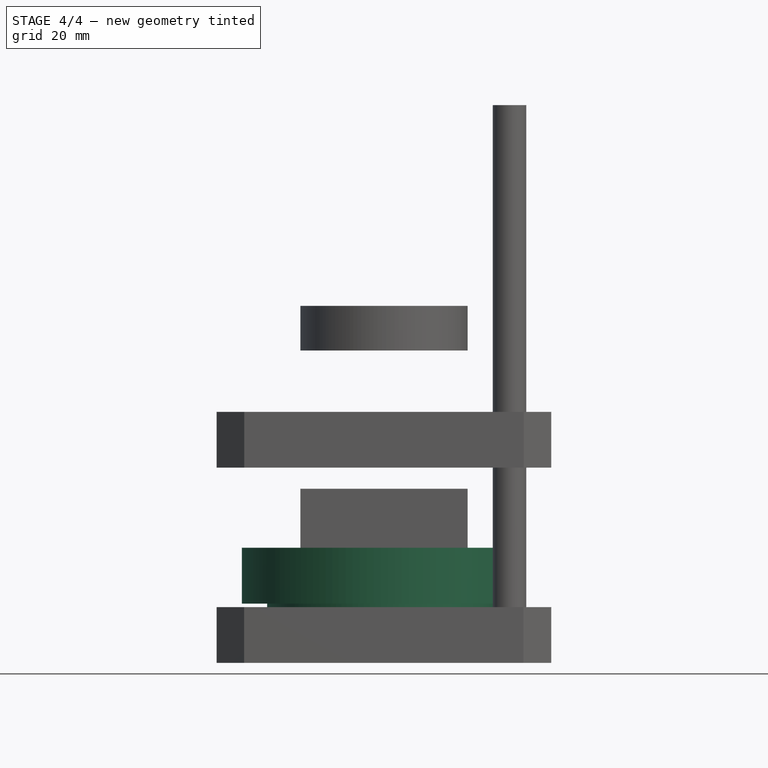
[diagram: stage 4 of 4 — front view after this stage's code; geometry added in this stage tinted green]
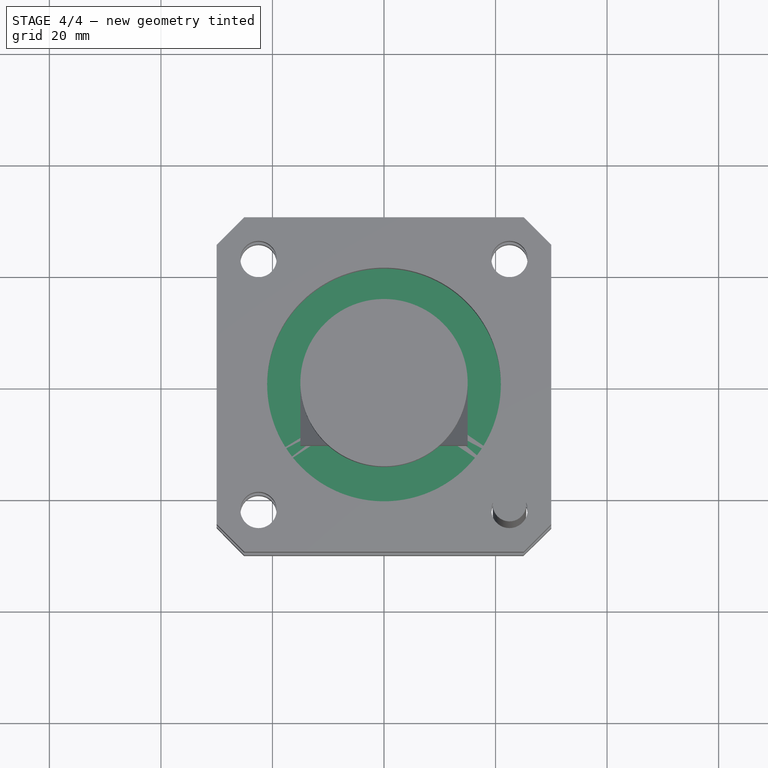
[diagram: stage 4 of 4 — top view after this stage's code; geometry added in this stage tinted green]
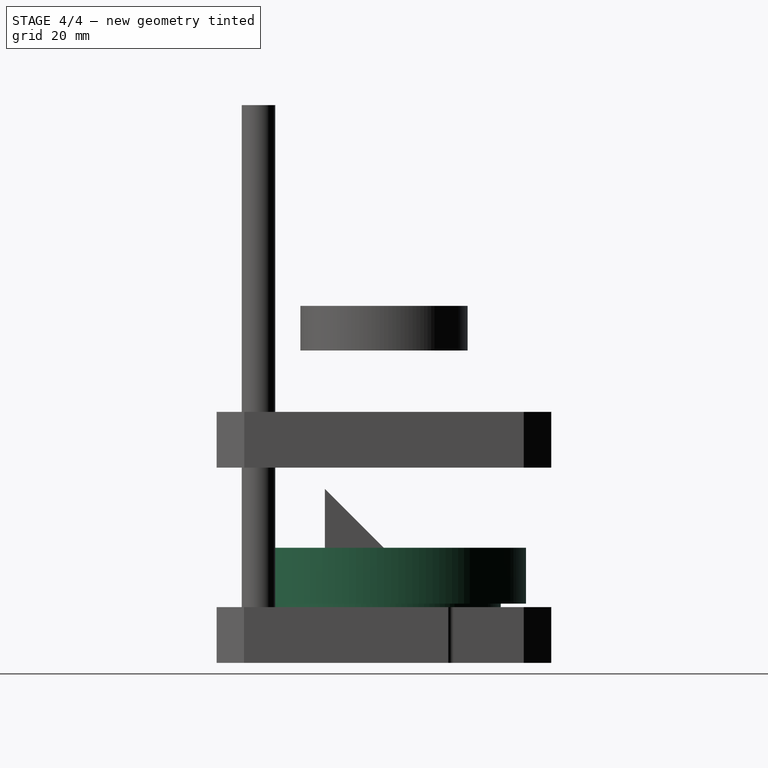
[diagram: stage 4 of 4 — right view after this stage's code; geometry added in this stage tinted green]
FEATURE [Sketcher::SketchObject] Sketch
  FullyConstrained = true
  MapMode = 5
  Placement = pos=(0,0,0) rot=(1,0,0;1.5708rad)
  Support = -> [XZ_Plane]
  expr: Constraints[24] = 27.34 / 2
  expr: Constraints[9] = Spreadsheet.excitermagnetdiameter / 2
  sketch-geometry (13):
    g0: LineSegment StartX=25.475 StartY=20.63 StartZ=0 EndX=25.475 EndY=10.63 EndZ=0
    g1: LineSegment StartX=25.475 StartY=10.63 StartZ=0 EndX=20.95 EndY=10.63 EndZ=0
    g2: LineSegment StartX=20.95 StartY=10.63 StartZ=0 EndX=20.95 EndY=6.5 EndZ=0
    g3: ArcOfCircle CenterX=14.45 CenterY=6.5 CenterZ=0 NormalX=0 NormalY=0 NormalZ=1 AngleXU=0 Radius=6.5 StartAngle=4.71239 EndAngle=6.28319
    g4: LineSegment StartX=0 StartY=4.5 StartZ=0 EndX=0 EndY=8.73 EndZ=0
    g5: LineSegment StartX=25.475 StartY=20.63 StartZ=0 EndX=13.67 EndY=20.63 EndZ=0
    g6: LineSegment StartX=13.67 StartY=20.63 StartZ=0 EndX=13.67 EndY=14.63 EndZ=0
    g7: LineSegment StartX=13.67 StartY=14.63 StartZ=0 EndX=2.45 EndY=14.63 EndZ=0
    g8: LineSegment StartX=2.45 StartY=14.63 StartZ=0 EndX=2.45 EndY=8.73 EndZ=0
    g9: LineSegment StartX=2.45 StartY=8.73 StartZ=0 EndX=0 EndY=8.73 EndZ=0
    g10: LineSegment StartX=14.45 StartY=0 StartZ=0 EndX=2.45 EndY=0 EndZ=0
    g11: LineSegment StartX=2.45 StartY=0 StartZ=0 EndX=2.45 EndY=4.5 EndZ=0
    g12: LineSegment StartX=2.45 StartY=4.5 StartZ=0 EndX=0 EndY=4.5 EndZ=0
  constraints (38):
    c: PointOnObject(g4,g-2)
    c: Vertical(g0)
    c: Coincident(g0,g1)
    c: Horizontal(g1)
    c: Coincident(g1,g2)
    c: Vertical(g2)
    c: Tangent(g2,g3) = 1.5708
    c: PointOnObject(g3,g-1)
    c: DistanceX(g-1,g0) = 25.475
    c: DistanceX(g-1,g2) = 20.95
    c: DistanceY(g3,g1) = 10.63
    c: DistanceY(g0,g0) = 10
    c: Radius(g3) = 6.5
    c: Coincident(g0,g5)
    c: Horizontal(g5)
    c: Coincident(g5,g6)
    c: Vertical(g6)
    c: Coincident(g6,g7)
    c: Horizontal(g7)
    c: Coincident(g7,g8)
    c: Vertical(g8)
    c: Coincident(g8,g9)
    c: Coincident(g9,g4)
    c: Horizontal(g9)
    c: DistanceX(g4,g5) = 13.67
    c: DistanceX(g9,g9) = 2.45
    c: DistanceY(g6,g6) = 6
    c: DistanceY(g8,g8) = 5.9
    c: Vertical(g4)
    c: PointOnObject(g10,g-1)
    c: Coincident(g10,g11)
    c: Vertical(g11)
    c: Coincident(g11,g12)
    c: Coincident(g12,g4)
    c: Horizontal(g12)
    c: DistanceY(g-1,g4) = 4.5
    c: Equal(g9,g12)
    c: Tangent(g3,g10) = 1.5708
FEATURE [PartDesign::Revolution] Revolution
  Angle = 360
  Axis = (0,-2e-16,1)
  Base = (0,0,0)
  Placement = pos=(0,0,0) rot=(1,0,0;1.5708rad)
  Profile = -> Sketch
  ReferenceAxis = -> Sketch [V_Axis]
  Refine = true
  Reversed = true
FEATURE [PartDesign::Body] Body001  label="Rod1Body"
  Group = -> [Sketch002,Clone2D,Pad]
  Origin = -> Origin001
  Tip = -> Pad
FEATURE [PartDesign::FeatureBase] Clone
  BaseFeature = -> Body001
FEATURE [PartDesign::Body] Body002  label="Rod2Body"
  BaseFeature = -> Body001
  Group = -> [Clone]
  Origin = -> Origin002
  Placement = pos=(0,0,0) rot=(0,0,1;1.5708rad)
  Tip = -> Clone
FEATURE [PartDesign::FeatureBase] Clone001
  BaseFeature = -> Body001
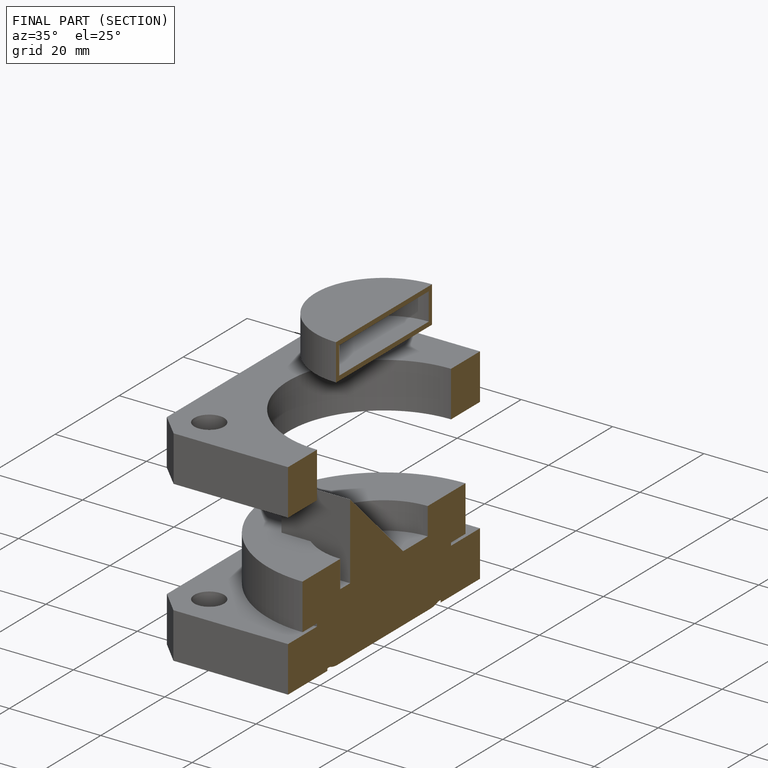
[diagram: finished part — half-section view (interior)]
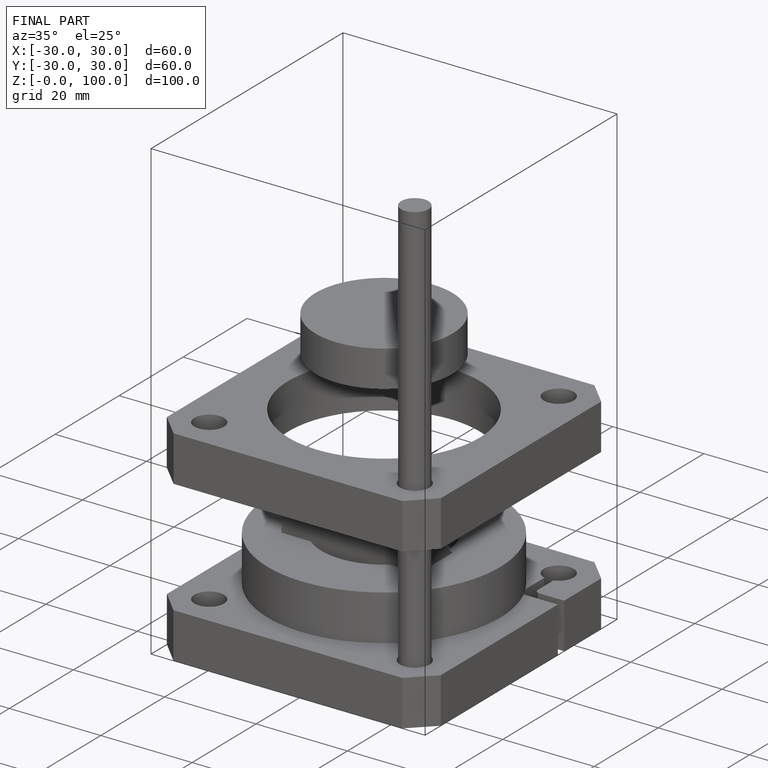
[diagram: finished part — iso view with bounding-box wireframe]
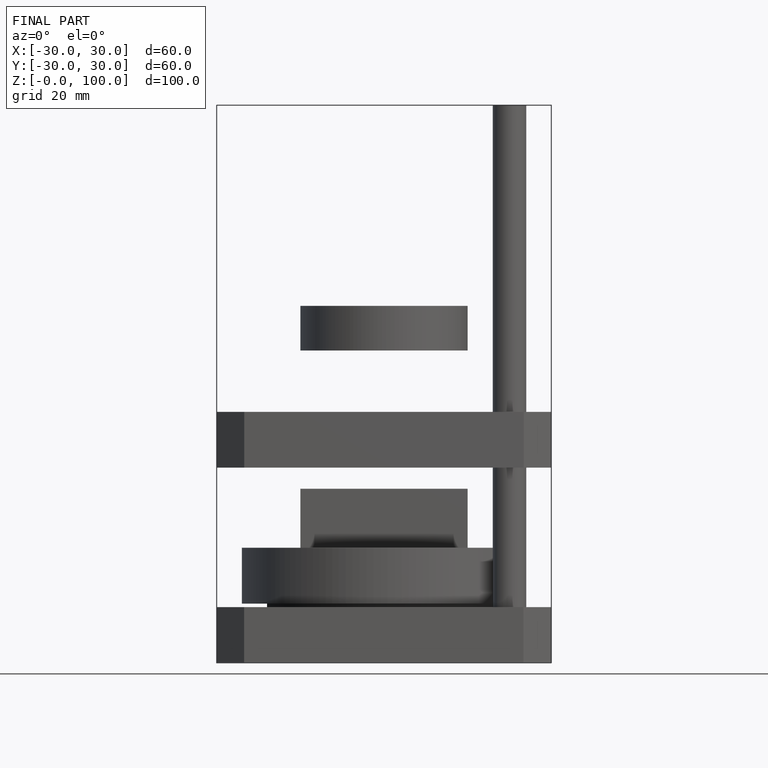
[diagram: finished part — front view with bounding-box wireframe]
